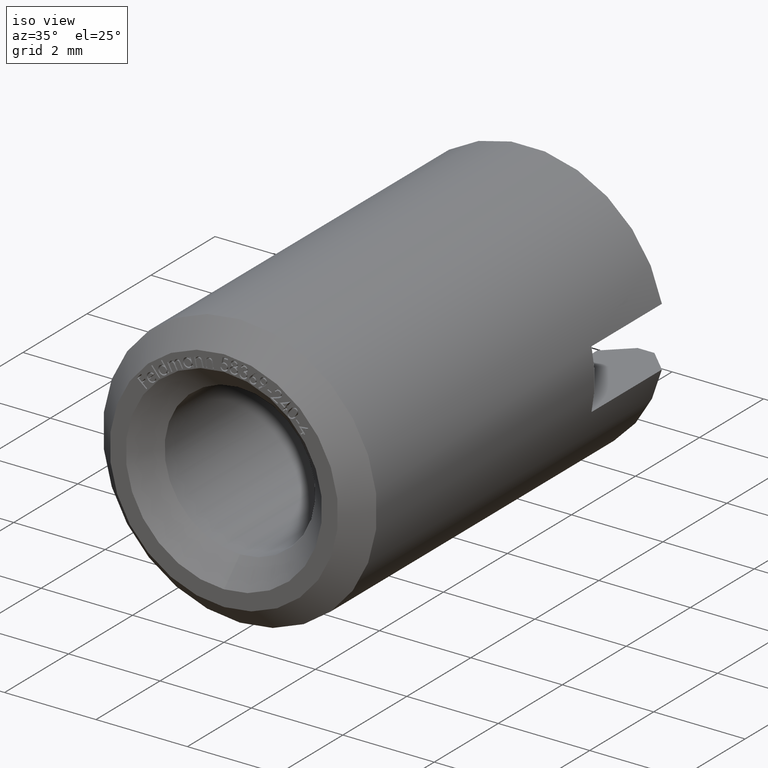
[diagram: clean part render]
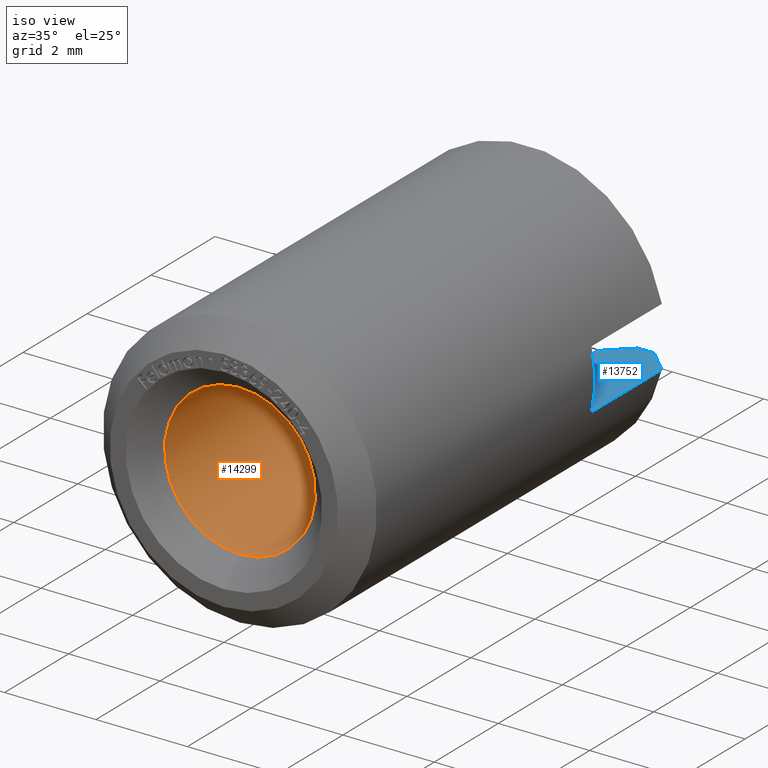
[diagram: same view with the hole feature highlighted: cylindrical wall and planar end face, labeled with their STEP entity ids]
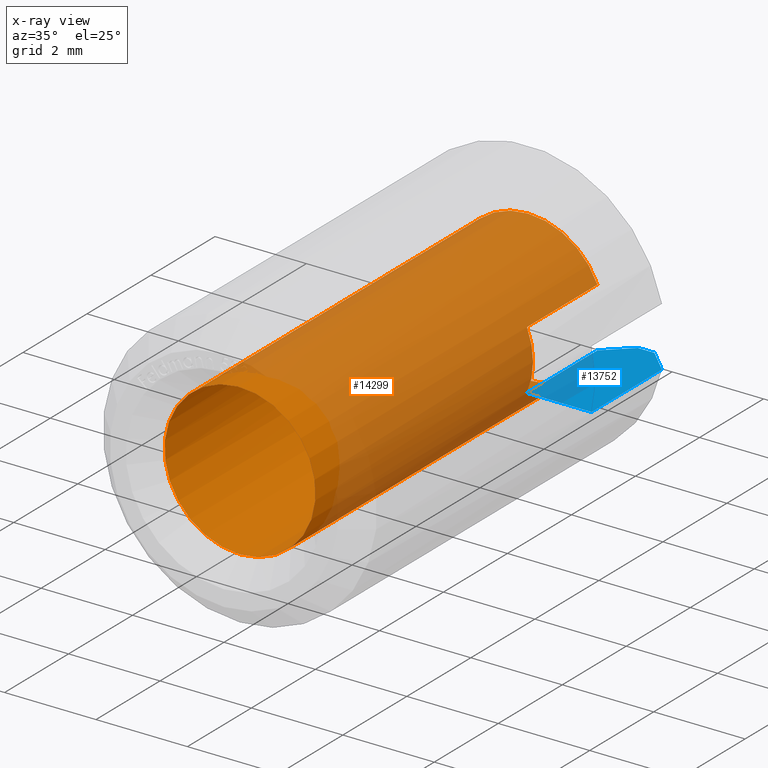
[diagram: x-ray of the same camera — body ghosted, the hole faces saturated]
A machine part, iso view. The highlighted faces form one hole feature of diameter 3.3 mm: the cylindrical wall (entity #14299, orange) and its adjacent planar end face (entity #13752, blue) — they share a circular edge in the B-rep.
The next image is the same camera in x-ray (body ghosted, the hole faces saturated) — the bore reads through the body.
Wall:
#58 = ORIENTED_EDGE ( 'NONE', *, *, #13086, .F. ) ;
#215 = CARTESIAN_POINT ( 'NONE',  ( 0.0000000000000000000, 7.299999999999999800, 0.0000000000000000000 ) ) ;
#217 = LINE ( 'NONE', #7956, #15363 ) ;
#248 = CARTESIAN_POINT ( 'NONE',  ( -1.516575088810305600, 7.300000000000000700, -0.6499999999999993600 ) ) ;
#389 = DIRECTION ( 'NONE',  ( 0.0000000000000000000, 0.0000000000000000000, 1.000000000000000000 ) ) ;
#647 = CARTESIAN_POINT ( 'NONE',  ( 1.516575088810305100, 9.500000000000000000, 0.6499999999999998000 ) ) ;
#906 = CIRCLE ( 'NONE', #14705, 1.649999999999995700 ) ;
#998 = LINE ( 'NONE', #10062, #13682 ) ;
#1818 = CARTESIAN_POINT ( 'NONE',  ( -1.516575088810305600, 9.500000000000000000, -0.6499999999999993600 ) ) ;
#2392 = EDGE_LOOP ( 'NONE', ( #5098, #4261, #15324, #14515, #11499, #8519, #5488, #58 ) ) ;
#2583 = CARTESIAN_POINT ( 'NONE',  ( 0.0000000000000000000, 0.5000000000000091000, -1.649999999999995700 ) ) ;
#2846 = DIRECTION ( 'NONE',  ( 0.0000000000000000000, 1.000000000000000000, 0.0000000000000000000 ) ) ;
#2889 = VECTOR ( 'NONE', #9227, 1000.000000000000000 ) ;
#2945 = VERTEX_POINT ( 'NONE', #13982 ) ;
#3001 = VERTEX_POINT ( 'NONE', #1818 ) ;
#3046 = CARTESIAN_POINT ( 'NONE',  ( 0.0000000000000000000, 9.500000000000000000, 0.0000000000000000000 ) ) ;
#3050 = CARTESIAN_POINT ( 'NONE',  ( 1.516575088810305600, 9.500000000000000000, -0.6499999999999998000 ) ) ;
#3088 = LINE ( 'NONE', #13871, #2889 ) ;
#3744 = EDGE_CURVE ( 'NONE', #14869, #8681, #4206, .T. ) ;
#3999 = DIRECTION ( 'NONE',  ( 0.0000000000000000000, 1.000000000000000000, 0.0000000000000000000 ) ) ;
#4206 = CIRCLE ( 'NONE', #6315, 1.649999999999995700 ) ;
#4261 = ORIENTED_EDGE ( 'NONE', *, *, #12793, .T. ) ;
#4529 = CIRCLE ( 'NONE', #6038, 1.649999999999995700 ) ;
#4963 = AXIS2_PLACEMENT_3D ( 'NONE', #3046, #2846, #12512 ) ;
#5007 = DIRECTION ( 'NONE',  ( 0.0000000000000000000, -1.000000000000000000, 0.0000000000000000000 ) ) ;
#5098 = ORIENTED_EDGE ( 'NONE', *, *, #7118, .F. ) ;
#5125 = LINE ( 'NONE', #7396, #5903 ) ;
#5223 = CYLINDRICAL_SURFACE ( 'NONE', #12591, 1.649999999999995700 ) ;
#5488 = ORIENTED_EDGE ( 'NONE', *, *, #7507, .F. ) ;
#5852 = DIRECTION ( 'NONE',  ( 0.0000000000000000000, 0.0000000000000000000, -1.000000000000000000 ) ) ;
#5903 = VECTOR ( 'NONE', #13341, 1000.000000000000000 ) ;
#6038 = AXIS2_PLACEMENT_3D ( 'NONE', #9437, #14188, #8279 ) ;
#6315 = AXIS2_PLACEMENT_3D ( 'NONE', #9297, #15487, #5852 ) ;
#6988 = CIRCLE ( 'NONE', #4963, 1.649999999999995700 ) ;
#7118 = EDGE_CURVE ( 'NONE', #10129, #2945, #3088, .T. ) ;
#7396 = CARTESIAN_POINT ( 'NONE',  ( -1.516575088810305100, 10.00000000000000000, 0.6500000000000001300 ) ) ;
#7442 = EDGE_CURVE ( 'NONE', #9831, #9411, #11241, .T. ) ;
#7507 = EDGE_CURVE ( 'NONE', #15343, #9411, #998, .T. ) ;
#7956 = CARTESIAN_POINT ( 'NONE',  ( -1.516575088810305600, 10.00000000000000000, -0.6499999999999993600 ) ) ;
#8098 = FACE_OUTER_BOUND ( 'NONE', #2392, .T. ) ;
#8279 = DIRECTION ( 'NONE',  ( 0.0000000000000000000, 0.0000000000000000000, -1.000000000000000000 ) ) ;
#8519 = ORIENTED_EDGE ( 'NONE', *, *, #7442, .T. ) ;
#8681 = VERTEX_POINT ( 'NONE', #248 ) ;
#8891 = EDGE_CURVE ( 'NONE', #9831, #14869, #5125, .T. ) ;
#8921 = CARTESIAN_POINT ( 'NONE',  ( 0.0000000000000000000, 10.00000000000000000, 0.0000000000000000000 ) ) ;
#9227 = DIRECTION ( 'NONE',  ( 0.0000000000000000000, -1.000000000000000000, 0.0000000000000000000 ) ) ;
#9287 = CARTESIAN_POINT ( 'NONE',  ( -1.516575088810305100, 9.500000000000000000, 0.6500000000000001300 ) ) ;
#9297 = CARTESIAN_POINT ( 'NONE',  ( 0.0000000000000000000, 7.299999999999999800, 0.0000000000000000000 ) ) ;
#9411 = VERTEX_POINT ( 'NONE', #647 ) ;
#9437 = CARTESIAN_POINT ( 'NONE',  ( 0.0000000000000000000, 0.5000000000000091000, 0.0000000000000000000 ) ) ;
#9831 = VERTEX_POINT ( 'NONE', #9287 ) ;
#9905 = CARTESIAN_POINT ( 'NONE',  ( -1.516575088810305300, 7.299999999999999800, 0.6500000000000003600 ) ) ;
#10062 = CARTESIAN_POINT ( 'NONE',  ( 1.516575088810305100, 10.00000000000000000, 0.6499999999999998000 ) ) ;
#10102 = EDGE_CURVE ( 'NONE', #8681, #3001, #217, .T. ) ;
#10129 = VERTEX_POINT ( 'NONE', #3050 ) ;
#10171 = FACE_OUTER_BOUND ( 'NONE', #13619, .T. ) ;
#10788 = EDGE_CURVE ( 'NONE', #13529, #13529, #4529, .T. ) ;
#11241 = CIRCLE ( 'NONE', #11519, 1.649999999999995700 ) ;
#11499 = ORIENTED_EDGE ( 'NONE', *, *, #8891, .F. ) ;
#11519 = AXIS2_PLACEMENT_3D ( 'NONE', #14861, #3999, #389 ) ;
#12512 = DIRECTION ( 'NONE',  ( 0.0000000000000000000, 0.0000000000000000000, 1.000000000000000000 ) ) ;
#12589 = DIRECTION ( 'NONE',  ( 0.0000000000000000000, 0.0000000000000000000, 1.000000000000000000 ) ) ;
#12591 = AXIS2_PLACEMENT_3D ( 'NONE', #8921, #13777, #12589 ) ;
#12620 = DIRECTION ( 'NONE',  ( -0.0000000000000000000, 1.000000000000000000, -0.0000000000000000000 ) ) ;
#12774 = CARTESIAN_POINT ( 'NONE',  ( 1.516575088810305300, 7.299999999999999800, 0.6500000000000000200 ) ) ;
#12793 = EDGE_CURVE ( 'NONE', #10129, #3001, #6988, .T. ) ;
#13086 = EDGE_CURVE ( 'NONE', #2945, #15343, #906, .T. ) ;
#13341 = DIRECTION ( 'NONE',  ( 0.0000000000000000000, -1.000000000000000000, 0.0000000000000000000 ) ) ;
#13529 = VERTEX_POINT ( 'NONE', #2583 ) ;
#13619 = EDGE_LOOP ( 'NONE', ( #14593 ) ) ;
#13682 = VECTOR ( 'NONE', #14971, 1000.000000000000000 ) ;
#13777 = DIRECTION ( 'NONE',  ( -0.0000000000000000000, 1.000000000000000000, -0.0000000000000000000 ) ) ;
#13871 = CARTESIAN_POINT ( 'NONE',  ( 1.516575088810305600, 10.00000000000000000, -0.6499999999999998000 ) ) ;
#13982 = CARTESIAN_POINT ( 'NONE',  ( 1.516575088810305600, 7.300000000000000700, -0.6499999999999998000 ) ) ;
#14188 = DIRECTION ( 'NONE',  ( -0.0000000000000000000, -1.000000000000000000, -0.0000000000000000000 ) ) ;
#14299 = ADVANCED_FACE ( 'NONE', ( #10171, #8098 ), #5223, .F. ) ;
#14515 = ORIENTED_EDGE ( 'NONE', *, *, #3744, .F. ) ;
#14593 = ORIENTED_EDGE ( 'NONE', *, *, #10788, .T. ) ;
#14699 = DIRECTION ( 'NONE',  ( 0.0000000000000000000, 0.0000000000000000000, -1.000000000000000000 ) ) ;
#14705 = AXIS2_PLACEMENT_3D ( 'NONE', #215, #5007, #14699 ) ;
#14861 = CARTESIAN_POINT ( 'NONE',  ( 0.0000000000000000000, 9.500000000000000000, 0.0000000000000000000 ) ) ;
#14869 = VERTEX_POINT ( 'NONE', #9905 ) ;
#14971 = DIRECTION ( 'NONE',  ( -0.0000000000000000000, 1.000000000000000000, -0.0000000000000000000 ) ) ;
#15324 = ORIENTED_EDGE ( 'NONE', *, *, #10102, .F. ) ;
#15343 = VERTEX_POINT ( 'NONE', #12774 ) ;
#15363 = VECTOR ( 'NONE', #12620, 1000.000000000000000 ) ;
#15487 = DIRECTION ( 'NONE',  ( 0.0000000000000000000, -1.000000000000000000, 0.0000000000000000000 ) ) ;
End face:
#95 = CARTESIAN_POINT ( 'NONE',  ( 2.928736929121494600, 9.500000000000000000, -0.6500000000000001300 ) ) ;
#172 = VERTEX_POINT ( 'NONE', #8841 ) ;
#247 = VERTEX_POINT ( 'NONE', #6610 ) ;
#635 = DIRECTION ( 'NONE',  ( -1.214306433183765000E-016, 0.0000000000000000000, -1.000000000000000000 ) ) ;
#856 = ORIENTED_EDGE ( 'NONE', *, *, #5546, .T. ) ;
#901 = ORIENTED_EDGE ( 'NONE', *, *, #6313, .T. ) ;
#1790 = PLANE ( 'NONE',  #4759 ) ;
#1899 = CARTESIAN_POINT ( 'NONE',  ( 12.50000000000000400, 7.299999999999999800, -0.6500000000000012400 ) ) ;
#2081 = VECTOR ( 'NONE', #11027, 1000.000000000000000 ) ;
#2889 = VECTOR ( 'NONE', #9227, 1000.000000000000000 ) ;
#2945 = VERTEX_POINT ( 'NONE', #13982 ) ;
#2950 = DIRECTION ( 'NONE',  ( -1.000000000000000000, 0.0000000000000000000, 1.214306433183765000E-016 ) ) ;
#3050 = CARTESIAN_POINT ( 'NONE',  ( 1.516575088810305600, 9.500000000000000000, -0.6499999999999998000 ) ) ;
#3088 = LINE ( 'NONE', #13871, #2889 ) ;
#3364 = ORIENTED_EDGE ( 'NONE', *, *, #8742, .F. ) ;
#3433 = VECTOR ( 'NONE', #2950, 1000.000000000000000 ) ;
#3791 = VECTOR ( 'NONE', #12119, 1000.000000000000000 ) ;
#3989 = VERTEX_POINT ( 'NONE', #12477 ) ;
#4167 = CARTESIAN_POINT ( 'NONE',  ( 1.516575088810305600, 9.500000000000000000, -0.6499999999999998000 ) ) ;
#4312 = ORIENTED_EDGE ( 'NONE', *, *, #5474, .T. ) ;
#4718 = LINE ( 'NONE', #11128, #2081 ) ;
#4759 = AXIS2_PLACEMENT_3D ( 'NONE', #1899, #635, #14060 ) ;
#5474 = EDGE_CURVE ( 'NONE', #247, #172, #9314, .T. ) ;
#5546 = EDGE_CURVE ( 'NONE', #3989, #247, #14303, .T. ) ;
#5739 = ORIENTED_EDGE ( 'NONE', *, *, #7118, .T. ) ;
#6287 = CARTESIAN_POINT ( 'NONE',  ( 2.928736929121494200, 7.299999999999999800, -0.6500000000000001300 ) ) ;
#6313 = EDGE_CURVE ( 'NONE', #13269, #3989, #4718, .T. ) ;
#6524 = ORIENTED_EDGE ( 'NONE', *, *, #8821, .T. ) ;
#6610 = CARTESIAN_POINT ( 'NONE',  ( 2.414021540914660100, 10.00000000000000000, -0.6500000000000001300 ) ) ;
#6675 = LINE ( 'NONE', #13670, #3433 ) ;
#7118 = EDGE_CURVE ( 'NONE', #10129, #2945, #3088, .T. ) ;
#7253 = CARTESIAN_POINT ( 'NONE',  ( 2.414021540914660100, 10.00000000000000000, -0.6500000000000001300 ) ) ;
#7297 = CARTESIAN_POINT ( 'NONE',  ( 2.757578815405588500, 9.667092362786181800, -0.6500000000000001300 ) ) ;
#8466 = CARTESIAN_POINT ( 'NONE',  ( 2.586092403099345300, 9.833846892848965700, -0.6500000000000001300 ) ) ;
#8480 = FACE_OUTER_BOUND ( 'NONE', #15383, .T. ) ;
#8742 = EDGE_CURVE ( 'NONE', #13269, #2945, #6675, .T. ) ;
#8821 = EDGE_CURVE ( 'NONE', #172, #10129, #15077, .T. ) ;
#8841 = CARTESIAN_POINT ( 'NONE',  ( 2.049390153191918500, 10.00000000000000000, -0.6500000000000000200 ) ) ;
#9227 = DIRECTION ( 'NONE',  ( 0.0000000000000000000, -1.000000000000000000, 0.0000000000000000000 ) ) ;
#9314 = LINE ( 'NONE', #10854, #3791 ) ;
#10129 = VERTEX_POINT ( 'NONE', #3050 ) ;
#10400 = CARTESIAN_POINT ( 'NONE',  ( 2.049390153191918500, 10.00000000000000000, -0.6500000000000000200 ) ) ;
#10854 = CARTESIAN_POINT ( 'NONE',  ( 12.50000000000000400, 10.00000000000000000, -0.6500000000000012400 ) ) ;
#11027 = DIRECTION ( 'NONE',  ( 0.0000000000000000000, 1.000000000000000000, 0.0000000000000000000 ) ) ;
#11128 = CARTESIAN_POINT ( 'NONE',  ( 2.928736929121493700, 0.0000000000000000000, -0.6499999999999999100 ) ) ;
#11452 = CARTESIAN_POINT ( 'NONE',  ( 1.695895357052979300, 9.664819788930671500, -0.6500000000000000200 ) ) ;
#11623 = CARTESIAN_POINT ( 'NONE',  ( 1.873091889638334200, 9.831951662627187000, -0.6500000000000000200 ) ) ;
#12119 = DIRECTION ( 'NONE',  ( -1.000000000000000000, 0.0000000000000000000, 1.214306433183765000E-016 ) ) ;
#12477 = CARTESIAN_POINT ( 'NONE',  ( 2.928736929121494600, 9.500000000000000000, -0.6500000000000001300 ) ) ;
#13269 = VERTEX_POINT ( 'NONE', #6287 ) ;
#13670 = CARTESIAN_POINT ( 'NONE',  ( 12.50000000000000400, 7.299999999999999800, -0.6500000000000012400 ) ) ;
#13752 = ADVANCED_FACE ( 'NONE', ( #8480 ), #1790, .F. ) ;
#13871 = CARTESIAN_POINT ( 'NONE',  ( 1.516575088810305600, 10.00000000000000000, -0.6499999999999998000 ) ) ;
#13982 = CARTESIAN_POINT ( 'NONE',  ( 1.516575088810305600, 7.300000000000000700, -0.6499999999999998000 ) ) ;
#14060 = DIRECTION ( 'NONE',  ( -1.000000000000000000, 0.0000000000000000000, 1.214306433183765000E-016 ) ) ;
#14303 = B_SPLINE_CURVE_WITH_KNOTS ( 'NONE', 3,
 ( #95, #7297, #8466, #7253 ),
 .UNSPECIFIED., .F., .F.,
 ( 4, 4 ),
 ( 0.005136716158415988200, 0.005854303722699023000 ),
 .UNSPECIFIED. ) ;
#15077 = B_SPLINE_CURVE_WITH_KNOTS ( 'NONE', 3,
 ( #10400, #11623, #11452, #4167 ),
 .UNSPECIFIED., .F., .F.,
 ( 4, 4 ),
 ( 0.0000000000000000000, 0.0007306790628121097100 ),
 .UNSPECIFIED. ) ;
#15383 = EDGE_LOOP ( 'NONE', ( #4312, #6524, #5739, #3364, #901, #856 ) ) ;